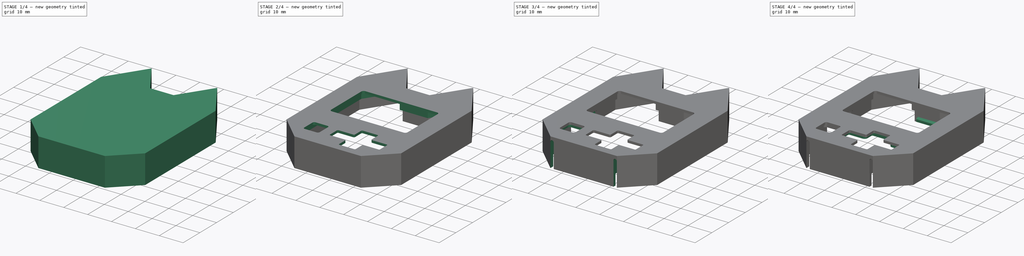
[diagram: build sequence overview — one tinted view per stage of 4, left to right]
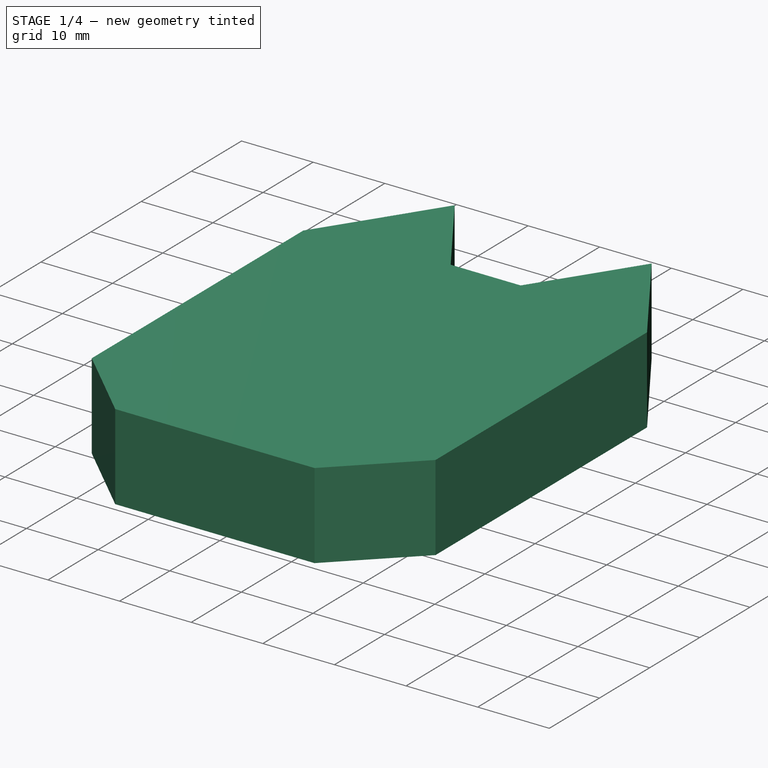
[diagram: stage 1 of 4 — iso view after this stage's code; geometry added in this stage tinted green]
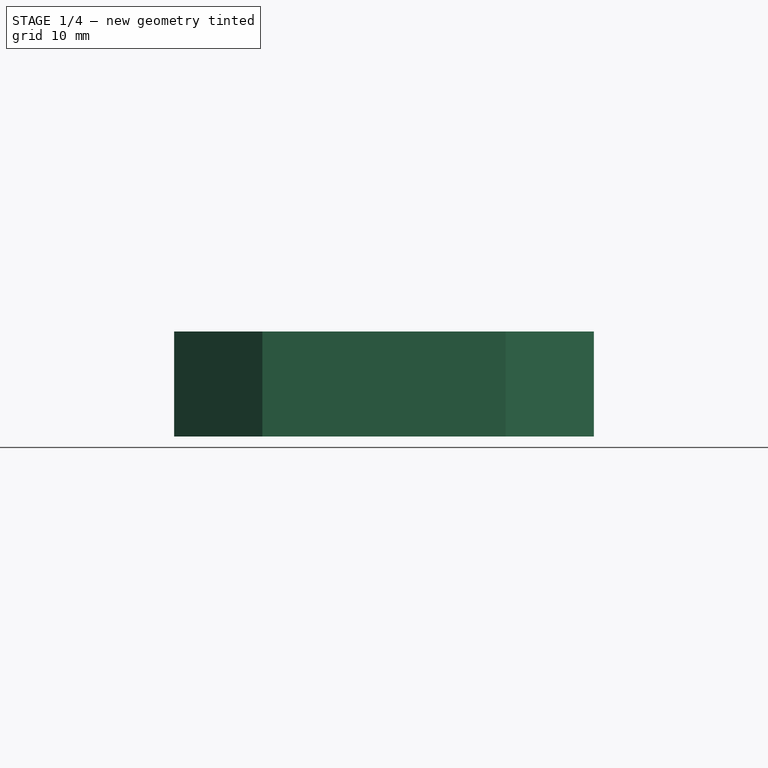
[diagram: stage 1 of 4 — front view after this stage's code; geometry added in this stage tinted green]
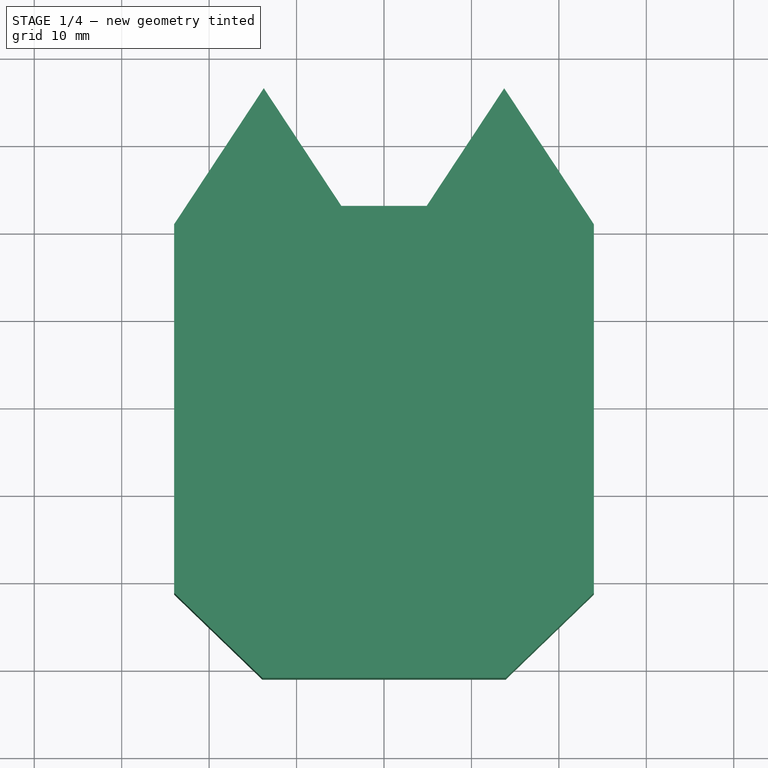
[diagram: stage 1 of 4 — top view after this stage's code; geometry added in this stage tinted green]
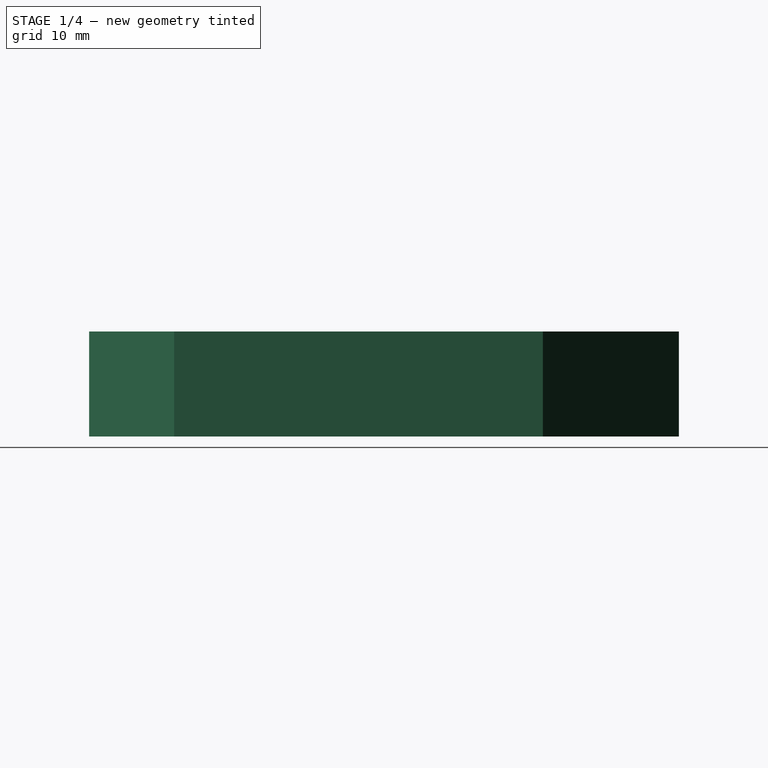
[diagram: stage 1 of 4 — right view after this stage's code; geometry added in this stage tinted green]
FCSTD DOCUMENT  (FreeCAD 0.20R29177 (Git))
Label: FACEPLATE
License: All rights reserved
LicenseURL: http://en.wikipedia.org/wiki/All_rights_reserved
objects: Sketcher::SketchObject×9, PartDesign::Pad×5, PartDesign::Pocket×4, PartDesign::Plane×1, PartDesign::Body×1
note: 29 computed .brp shape members not serialized (recipe doc carries the construction recipe); baked Part::Feature solids carry a one-line shape summary decoded from their .brp

FEATURE [Sketcher::SketchObject] CopySketch
  FullyConstrained = true
  sketch-geometry (22):
    g0: LineSegment StartX=-21 StartY=20 StartZ=0 EndX=-13.75 EndY=31 EndZ=0
    g1: LineSegment StartX=-13.75 StartY=31 StartZ=0 EndX=-6.5 EndY=20 EndZ=0
    g2: LineSegment StartX=-6.5 StartY=20 StartZ=0 EndX=6.5 EndY=20 EndZ=0
    g3: LineSegment StartX=6.5 StartY=20 StartZ=0 EndX=13.75 EndY=31 EndZ=0
    g4: LineSegment StartX=13.75 StartY=31 StartZ=0 EndX=21 EndY=20 EndZ=0
    g5: LineSegment StartX=21 StartY=20 StartZ=0 EndX=21 EndY=-20 EndZ=0
    g6: LineSegment StartX=21 StartY=-20 StartZ=0 EndX=12.7 EndY=-28 EndZ=0
    g7: LineSegment StartX=12.7 StartY=-28 StartZ=0 EndX=-12.7 EndY=-28 EndZ=0
    g8: LineSegment StartX=-12.7 StartY=-28 StartZ=0 EndX=-21 EndY=-20 EndZ=0
    g9: LineSegment StartX=-21 StartY=-20 StartZ=0 EndX=-21 EndY=20 EndZ=0
    g10: LineSegment StartX=-24 StartY=20.8997 StartZ=0 EndX=-13.75 EndY=36.4514 EndZ=0
    g11: LineSegment StartX=-13.75 StartY=36.4514 StartZ=0 EndX=-4.88428 EndY=23 EndZ=0
    g12: LineSegment StartX=-4.88428 StartY=23 StartZ=0 EndX=4.88428 EndY=23 EndZ=0
    g13: LineSegment StartX=4.88428 StartY=23 StartZ=0 EndX=13.75 EndY=36.4514 EndZ=0
    g14: LineSegment StartX=13.75 StartY=36.4514 StartZ=0 EndX=24 EndY=20.8997 EndZ=0
    g15: LineSegment StartX=24 StartY=20.8997 StartZ=0 EndX=24 EndY=-21.2751 EndZ=0
    g16: LineSegment StartX=24 StartY=-21.2751 StartZ=0 EndX=13.9104 EndY=-31 EndZ=0
    g17: LineSegment StartX=13.9104 StartY=-31 StartZ=0 EndX=-13.9104 EndY=-31 EndZ=0
    g18: LineSegment StartX=-13.9104 StartY=-31 StartZ=0 EndX=-24 EndY=-21.2751 EndZ=0
    g19: LineSegment StartX=-24 StartY=-21.2751 StartZ=0 EndX=-24 EndY=20.8997 EndZ=0
    g20: LineSegment StartX=-14.7819 StartY=-30.16 StartZ=0 EndX=-12.7 EndY=-28 EndZ=0
    g21: LineSegment StartX=-13.75 StartY=31 StartZ=0 EndX=-11.2451 EndY=32.6509 EndZ=0
  constraints (60):
    c: Coincident(g0,g1)
    c: Coincident(g1,g2)
    c: Coincident(g2,g3)
    c: Coincident(g3,g4)
    c: Coincident(g4,g5)
    c: Vertical(g5)
    c: Coincident(g5,g6)
    c: Coincident(g6,g7)
    c: Coincident(g7,g8)
    c: Coincident(g8,g9)
    c: Coincident(g9,g0)
    c: DistanceY(g9,g9) = 40
    c: DistanceY(g7,g0) = 59
    c: DistanceY(g6,g5) = 8
    c: DistanceX(g2,g2) = 13
    c: DistanceX(g6,g5) = 8.3
    c: Equal(g5,g9)
    c: Equal(g0,g1)
    c: Equal(g1,g3)
    c: Equal(g3,g4)
    c: Symmetric(g2,g1,g-2)
    c: Symmetric(g7,g6,g-2)
    c: Symmetric(g0,g4,g-2)
    c: Horizontal(g2,g4)
    c: DistanceX(g8,g5) = 42
    c: Symmetric(g0,g8,g-1)
    c: Coincident(g10,g11)
    c: Coincident(g11,g12)
    c: Coincident(g12,g13)
    c: Coincident(g13,g14)
    c: Coincident(g14,g15)
    c: Coincident(g15,g16)
    c: Coincident(g16,g17)
    c: Coincident(g17,g18)
    c: Coincident(g18,g19)
    c: Coincident(g19,g10)
    c: Parallel(g10,g0)
    c: Vertical(g19)
    c: Parallel(g4,g14)
    c: Vertical(g15)
    c: Parallel(g18,g8)
    c: Parallel(g6,g16)
    c: Symmetric(g11,g12,g-2)
    c: Symmetric(g17,g16,g-2)
    c: Equal(g19,g15)
    c: Equal(g16,g18)
    c: DistanceX(g18,g8) = 3
    c: DistanceY(g17,g7) = 3
    c: Perpendicular(g18,g20)
    c: PointOnObject(g20,g18)
    c: Distance(g20) = 3
    c: Coincident(g20,g7)
    c: PointOnObject(g21,g11)
    c: Perpendicular(g1,g21)
    c: Distance(g21) = 3
    c: Horizontal(g13,g10)
    c: Vertical(g10,g0)
    c: DistanceY(g1,g11) = 3
    c: Parallel(g1,g11)
    c: Coincident(g21,g0)
FEATURE [PartDesign::Pad] Pad
  AllowMultiFace = false
  Direction = (1,1,1)
  Length = 12
  Length2 = 100
  Profile = -> CopySketch
  Type = 0
FEATURE [Sketcher::SketchObject] CopySketch002
  FullyConstrained = true
  sketch-geometry (22):
    g0: LineSegment StartX=-21 StartY=20 StartZ=0 EndX=-13.75 EndY=31 EndZ=0
    g1: LineSegment StartX=-13.75 StartY=31 StartZ=0 EndX=-6.5 EndY=20 EndZ=0
    g2: LineSegment StartX=-6.5 StartY=20 StartZ=0 EndX=6.5 EndY=20 EndZ=0
    g3: LineSegment StartX=6.5 StartY=20 StartZ=0 EndX=13.75 EndY=31 EndZ=0
    g4: LineSegment StartX=13.75 StartY=31 StartZ=0 EndX=21 EndY=20 EndZ=0
    g5: LineSegment StartX=21 StartY=20 StartZ=0 EndX=21 EndY=-20 EndZ=0
    g6: LineSegment StartX=21 StartY=-20 StartZ=0 EndX=12.7 EndY=-28 EndZ=0
    g7: LineSegment StartX=12.7 StartY=-28 StartZ=0 EndX=-12.7 EndY=-28 EndZ=0
    g8: LineSegment StartX=-12.7 StartY=-28 StartZ=0 EndX=-21 EndY=-20 EndZ=0
    g9: LineSegment StartX=-21 StartY=-20 StartZ=0 EndX=-21 EndY=20 EndZ=0
    g10: LineSegment StartX=-22.8 StartY=20.5398 StartZ=0 EndX=-13.75 EndY=34.2709 EndZ=0
    g11: LineSegment StartX=-13.75 StartY=34.2709 StartZ=0 EndX=-5.33284 EndY=21.5 EndZ=0
    g12: LineSegment StartX=-5.33284 StartY=21.5 StartZ=0 EndX=5.33284 EndY=21.5 EndZ=0
    g13: LineSegment StartX=5.33284 StartY=21.5 StartZ=0 EndX=13.75 EndY=34.2709 EndZ=0
    g14: LineSegment StartX=13.75 StartY=34.2709 StartZ=0 EndX=22.8 EndY=20.5398 EndZ=0
    g15: LineSegment StartX=22.8 StartY=20.5398 StartZ=0 EndX=22.8 EndY=-20.7651 EndZ=0
    g16: LineSegment StartX=22.8 StartY=-20.7651 StartZ=0 EndX=13.4263 EndY=-29.8 EndZ=0
    g17: LineSegment StartX=13.4263 StartY=-29.8 StartZ=0 EndX=-13.4263 EndY=-29.8 EndZ=0
    g18: LineSegment StartX=-13.4263 StartY=-29.8 StartZ=0 EndX=-22.8 EndY=-20.7651 EndZ=0
    g19: LineSegment StartX=-22.8 StartY=-20.7651 StartZ=0 EndX=-22.8 EndY=20.5398 EndZ=0
    g20: LineSegment StartX=-13.9492 StartY=-29.296 StartZ=0 EndX=-12.7 EndY=-28 EndZ=0
    g21: LineSegment StartX=-13.75 StartY=31 StartZ=0 EndX=-12.2471 EndY=31.9906 EndZ=0
  constraints (60):
    c: Coincident(g0,g1)
    c: Coincident(g1,g2)
    c: Coincident(g2,g3)
    c: Coincident(g3,g4)
    c: Coincident(g4,g5)
    c: Vertical(g5)
    c: Coincident(g5,g6)
    c: Coincident(g6,g7)
    c: Coincident(g7,g8)
    c: Coincident(g8,g9)
    c: Coincident(g9,g0)
    c: DistanceY(g9,g9) = 40
    c: DistanceY(g7,g0) = 59
    c: DistanceY(g6,g5) = 8
    c: DistanceX(g2,g2) = 13
    c: DistanceX(g6,g5) = 8.3
    c: Equal(g5,g9)
    c: Equal(g0,g1)
    c: Equal(g1,g3)
    c: Equal(g3,g4)
    c: Symmetric(g2,g1,g-2)
    c: Symmetric(g7,g6,g-2)
    c: Symmetric(g0,g4,g-2)
    c: Horizontal(g2,g4)
    c: DistanceX(g8,g5) = 42
    c: Symmetric(g0,g8,g-1)
    c: Coincident(g10,g11)
    c: Coincident(g11,g12)
    c: Coincident(g12,g13)
    c: Coincident(g13,g14)
    c: Coincident(g14,g15)
    c: Coincident(g15,g16)
    c: Coincident(g16,g17)
    c: Coincident(g17,g18)
    c: Coincident(g18,g19)
    c: Coincident(g19,g10)
    c: Parallel(g10,g0)
    c: Vertical(g19)
    c: Parallel(g4,g14)
    c: Vertical(g15)
    c: Parallel(g18,g8)
    c: Parallel(g6,g16)
    c: Symmetric(g11,g12,g-2)
    c: Symmetric(g17,g16,g-2)
    c: Equal(g19,g15)
    c: Equal(g16,g18)
    c: DistanceX(g18,g8) = 1.8
    c: DistanceY(g17,g7) = 1.8
    c: Perpendicular(g18,g20)
    c: PointOnObject(g20,g18)
    c: Distance(g20) = 1.8
    c: Coincident(g20,g7)
    c: PointOnObject(g21,g11)
    c: Perpendicular(g1,g21)
    c: Distance(g21) = 1.8
    c: Horizontal(g13,g10)
    c: Vertical(g10,g0)
    c: DistanceY(g1,g11) = 1.5
    c: Parallel(g1,g11)
    c: Coincident(g21,g0)
FEATURE [PartDesign::Pocket] Pocket
  AllowMultiFace = false
  BaseFeature = -> Pad
  Direction = (1,1,1)
  Length = 11
  Length2 = 100
  Profile = -> CopySketch002
  Reversed = true
  Type = 0
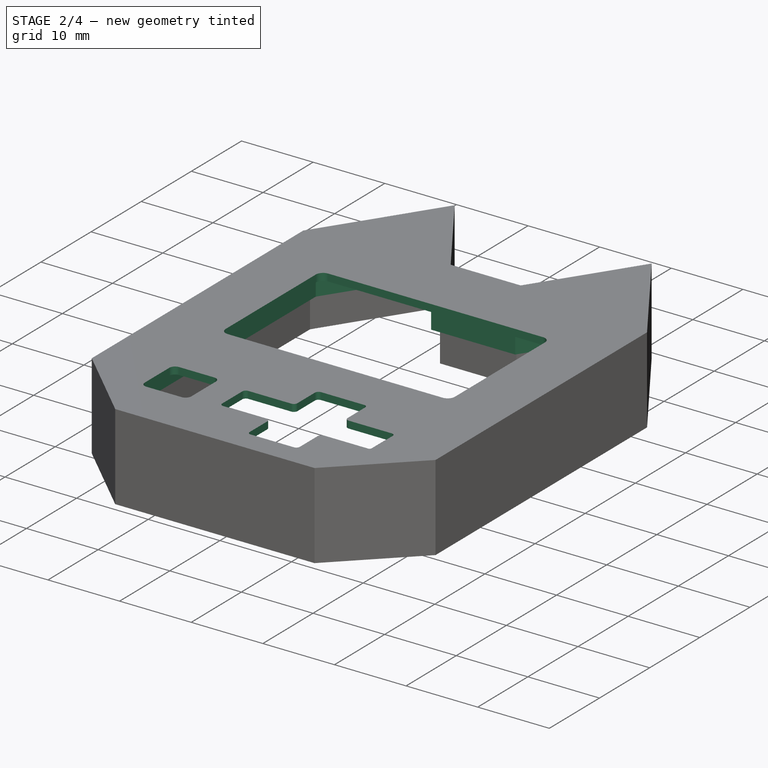
[diagram: stage 2 of 4 — iso view after this stage's code; geometry added in this stage tinted green]
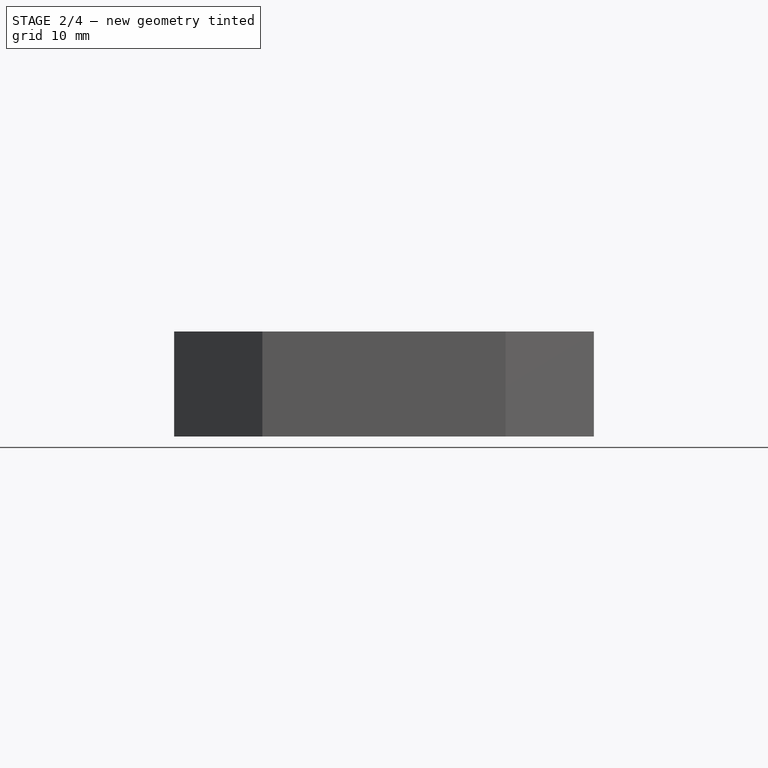
[diagram: stage 2 of 4 — front view after this stage's code; geometry added in this stage tinted green]
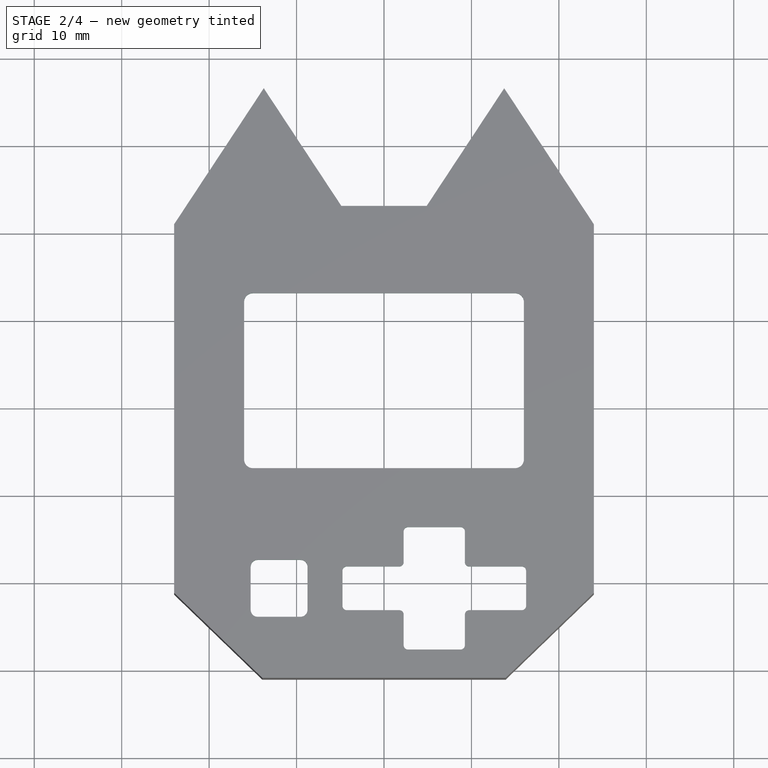
[diagram: stage 2 of 4 — top view after this stage's code; geometry added in this stage tinted green]
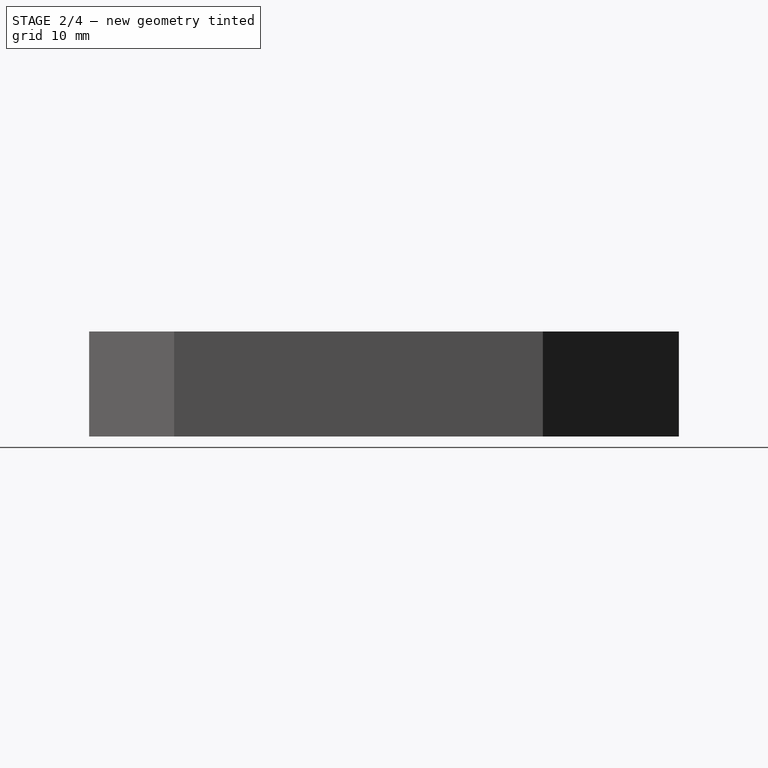
[diagram: stage 2 of 4 — right view after this stage's code; geometry added in this stage tinted green]
FEATURE [Sketcher::SketchObject] Sketch003
  ExternalGeometry = -> [Pocket]
  FullyConstrained = true
  MapMode = 5
  Placement = pos=(0,0,12) rot=(0,0,1;0rad)
  Support = -> [Pocket]
  sketch-geometry (41):
    g0: LineSegment StartX=-15 StartY=13 StartZ=0 EndX=15 EndY=13 EndZ=0
    g1: LineSegment StartX=16 StartY=12 StartZ=0 EndX=16 EndY=-6 EndZ=0
    g2: LineSegment StartX=15 StartY=-7 StartZ=0 EndX=-15 EndY=-7 EndZ=0
    g3: LineSegment StartX=-16 StartY=-6 StartZ=0 EndX=-16 EndY=12 EndZ=0
    g4: LineSegment StartX=2.75 StartY=-13.75 StartZ=0 EndX=8.75 EndY=-13.75 EndZ=0
    g5: LineSegment StartX=9.25 StartY=-14.25 StartZ=0 EndX=9.25 EndY=-17.75 EndZ=0
    g6: LineSegment StartX=9.75 StartY=-18.25 StartZ=0 EndX=15.75 EndY=-18.25 EndZ=0
    g7: LineSegment StartX=16.25 StartY=-18.75 StartZ=0 EndX=16.25 EndY=-22.75 EndZ=0
    g8: LineSegment StartX=15.75 StartY=-23.25 StartZ=0 EndX=9.75 EndY=-23.25 EndZ=0
    g9: LineSegment StartX=9.25 StartY=-23.75 StartZ=0 EndX=9.25 EndY=-27.25 EndZ=0
    g10: LineSegment StartX=8.75 StartY=-27.75 StartZ=0 EndX=2.75 EndY=-27.75 EndZ=0
    g11: LineSegment StartX=2.25 StartY=-27.25 StartZ=0 EndX=2.25 EndY=-23.75 EndZ=0
    g12: LineSegment StartX=1.75 StartY=-23.25 StartZ=0 EndX=-4.25 EndY=-23.25 EndZ=0
    g13: LineSegment StartX=-4.75 StartY=-22.75 StartZ=0 EndX=-4.75 EndY=-18.75 EndZ=0
    g14: LineSegment StartX=-4.25 StartY=-18.25 StartZ=0 EndX=1.75 EndY=-18.25 EndZ=0
    g15: LineSegment StartX=2.25 StartY=-17.75 StartZ=0 EndX=2.25 EndY=-14.25 EndZ=0
    g16: LineSegment StartX=-14.45 StartY=-17.5 StartZ=0 EndX=-9.55 EndY=-17.5 EndZ=0
    g17: LineSegment StartX=-8.75 StartY=-18.3 StartZ=0 EndX=-8.75 EndY=-23.2 EndZ=0
    g18: LineSegment StartX=-9.55 StartY=-24 StartZ=0 EndX=-14.45 EndY=-24 EndZ=0
    g19: LineSegment StartX=-15.25 StartY=-23.2 StartZ=0 EndX=-15.25 EndY=-18.3 EndZ=0
    g20: LineSegment StartX=-4.75 StartY=-20.75 StartZ=0 EndX=-8.75 EndY=-20.75 EndZ=0
    g21: ArcOfCircle CenterX=2.75 CenterY=-14.25 CenterZ=0 NormalX=0 NormalY=0 NormalZ=1 AngleXU=0 Radius=0.5 StartAngle=1.5708 EndAngle=3.14159
    g22: ArcOfCircle CenterX=8.75 CenterY=-14.25 CenterZ=0 NormalX=0 NormalY=0 NormalZ=1 AngleXU=0 Radius=0.5 StartAngle=0 EndAngle=1.5708
    g23: ArcOfCircle CenterX=15.75 CenterY=-18.75 CenterZ=0 NormalX=0 NormalY=0 NormalZ=1 AngleXU=0 Radius=0.5 StartAngle=-3.6e-15 EndAngle=1.5708
    g24: ArcOfCircle CenterX=15.75 CenterY=-22.75 CenterZ=0 NormalX=0 NormalY=0 NormalZ=1 AngleXU=0 Radius=0.5 StartAngle=4.71239 EndAngle=6.28319
    g25: ArcOfCircle CenterX=8.75 CenterY=-27.25 CenterZ=0 NormalX=0 NormalY=0 NormalZ=1 AngleXU=0 Radius=0.5 StartAngle=4.71239 EndAngle=6.28319
    g26: ArcOfCircle CenterX=2.75 CenterY=-27.25 CenterZ=0 NormalX=0 NormalY=0 NormalZ=1 AngleXU=0 Radius=0.5 StartAngle=3.14159 EndAngle=4.71239
    g27: ArcOfCircle CenterX=-4.25 CenterY=-18.75 CenterZ=0 NormalX=0 NormalY=0 NormalZ=1 AngleXU=0 Radius=0.5 StartAngle=1.5708 EndAngle=3.14159
    g28: ArcOfCircle CenterX=-4.25 CenterY=-22.75 CenterZ=0 NormalX=0 NormalY=0 NormalZ=1 AngleXU=0 Radius=0.5 StartAngle=3.14159 EndAngle=4.71239
    g29: ArcOfCircle CenterX=1.75 CenterY=-17.75 CenterZ=0 NormalX=0 NormalY=0 NormalZ=1 AngleXU=0 Radius=0.5 StartAngle=4.71239 EndAngle=6.28319
    g30: ArcOfCircle CenterX=1.75 CenterY=-23.75 CenterZ=0 NormalX=0 NormalY=0 NormalZ=1 AngleXU=0 Radius=0.5 StartAngle=0 EndAngle=1.5708
    g31: ArcOfCircle CenterX=9.75 CenterY=-17.75 CenterZ=0 NormalX=0 NormalY=0 NormalZ=1 AngleXU=0 Radius=0.5 StartAngle=3.14159 EndAngle=4.71239
    g32: ArcOfCircle CenterX=9.75 CenterY=-23.75 CenterZ=0 NormalX=0 NormalY=0 NormalZ=1 AngleXU=0 Radius=0.5 StartAngle=1.5708 EndAngle=3.14159
    g33: ArcOfCircle CenterX=-9.55 CenterY=-18.3 CenterZ=0 NormalX=0 NormalY=0 NormalZ=1 AngleXU=0 Radius=0.8 StartAngle=0 EndAngle=1.5708
    g34: ArcOfCircle CenterX=-14.45 CenterY=-23.2 CenterZ=0 NormalX=0 NormalY=0 NormalZ=1 AngleXU=0 Radius=0.8 StartAngle=3.14159 EndAngle=4.71239
    g35: ArcOfCircle CenterX=-9.55 CenterY=-23.2 CenterZ=0 NormalX=0 NormalY=0 NormalZ=1 AngleXU=0 Radius=0.8 StartAngle=4.71239 EndAngle=6.28319
    g36: ArcOfCircle CenterX=-14.45 CenterY=-18.3 CenterZ=0 NormalX=0 NormalY=0 NormalZ=1 AngleXU=0 Radius=0.8 StartAngle=1.5708 EndAngle=3.14159
    g37: ArcOfCircle CenterX=-15 CenterY=12 CenterZ=0 NormalX=0 NormalY=0 NormalZ=1 AngleXU=0 Radius=1 StartAngle=1.5708 EndAngle=3.14159
    g38: ArcOfCircle CenterX=15 CenterY=12 CenterZ=0 NormalX=0 NormalY=0 NormalZ=1 AngleXU=0 Radius=1 StartAngle=2e-16 EndAngle=1.5708
    g39: ArcOfCircle CenterX=15 CenterY=-6 CenterZ=0 NormalX=0 NormalY=0 NormalZ=1 AngleXU=0 Radius=1 StartAngle=4.71239 EndAngle=6.28319
    g40: ArcOfCircle CenterX=-15 CenterY=-6 CenterZ=0 NormalX=0 NormalY=0 NormalZ=1 AngleXU=0 Radius=1 StartAngle=3.14159 EndAngle=4.71239
  constraints (101):
    c: Equal(g3,g1)
    c: Vertical(g3)
    c: Horizontal(g4)
    c: Vertical(g11)
    c: Horizontal(g10)
    c: Horizontal(g8)
    c: Horizontal(g6)
    c: Horizontal(g14)
    c: Vertical(g5)
    c: Vertical(g15)
    c: Horizontal(g12)
    c: Vertical(g9)
    c: Vertical(g7)
    c: Equal(g6,g14)
    c: Equal(g14,g4)
    c: Equal(g9,g5)
    c: Vertical(g17)
    c: Vertical(g19)
    c: Horizontal(g18)
    c: Horizontal(g16)
    c: Equal(g17,g19)
    c: Horizontal(g20)
    c: Tangent(g15,g21) = 1.5708
    c: Tangent(g4,g21) = 1.5708
    c: Tangent(g4,g22) = 1.5708
    c: Tangent(g5,g22) = 1.5708
    c: Tangent(g6,g23) = 1.5708
    c: Tangent(g7,g23) = 1.5708
    c: Tangent(g7,g24) = 1.5708
    c: Tangent(g8,g24) = 1.5708
    c: Tangent(g9,g25) = 1.5708
    c: Tangent(g10,g25) = 1.5708
    c: Tangent(g11,g26) = 1.5708
    c: Tangent(g10,g26) = 1.5708
    c: Tangent(g13,g27) = 1.5708
    c: Tangent(g14,g27) = 1.5708
    c: Tangent(g13,g28) = 1.5708
    c: Tangent(g12,g28) = 1.5708
    c: Tangent(g14,g29) = -1.5708
    c: Tangent(g15,g29) = -1.5708
    c: Tangent(g12,g30) = -1.5708
    c: Tangent(g11,g30) = -1.5708
    c: Tangent(g5,g31) = -1.5708
    c: Tangent(g6,g31) = -1.5708
    c: Tangent(g9,g32) = -1.5708
    c: Tangent(g8,g32) = -1.5708
    c: Equal(g32,g30)
    c: Equal(g30,g29)
    c: Equal(g29,g31)
    c: Equal(g27,g28)
    c: Equal(g28,g26)
    c: Equal(g26,g25)
    c: Equal(g25,g24)
    c: Equal(g24,g23)
    c: Equal(g23,g22)
    c: Equal(g22,g21)
    c: Radius(g27) = 0.5
    c: Radius(g29) = 0.5
    c: DistanceY(g14,g4) = 4.5
    c: DistanceX(g13,g15) = 7
    c: Horizontal(g31,g29)
    c: Vertical(g32,g31)
    c: Vertical(g29,g30)
    c: Horizontal(g32,g30)
    c: DistanceY(g12,g14) = 5
    c: Symmetric(g13,g13,g20)
    c: DistanceX(g20,g20) = 4
    c: Vertical(g13)
    c: Tangent(g16,g33) = 1.5708
    c: Tangent(g17,g33) = 1.5708
    c: Tangent(g19,g34) = 1.5708
    c: Tangent(g18,g34) = 1.5708
    c: Tangent(g18,g35) = 1.5708
    c: Tangent(g17,g35) = 1.5708
    c: Tangent(g19,g36) = 1.5708
    c: Tangent(g16,g36) = 1.5708
    c: DistanceY(g-3,g18) = 7
    c: DistanceY(g18,g16) = 6.5
    c: DistanceX(g19,g17) = 6.5
    c: Equal(g35,g33)
    c: Equal(g33,g36)
    c: Radius(g34) = 0.8
    c: Tangent(g3,g37) = 1.5708
    c: Tangent(g0,g37) = 1.5708
    c: Tangent(g0,g38) = 1.5708
    c: Tangent(g1,g38) = 1.5708
    c: DistanceY(g0,g-4) = 10
    c: DistanceX(g3,g1) = 32
    c: Tangent(g2,g39) = 1.5708
    c: Tangent(g1,g39) = 1.5708
    c: Tangent(g3,g40) = 1.5708
    c: Tangent(g2,g40) = 1.5708
    c: Equal(g39,g40)
    c: Equal(g40,g37)
    c: Equal(g37,g38)
    c: Radius(g38) = 1
    c: Symmetric(g1,g3,g-2)
    c: Vertical(g1)
    c: DistanceY(g2,g0) = 20
    c: DistanceX(g-5,g19) = 8.75
    c: Symmetric(g17,g17,g20)
FEATURE [PartDesign::Pocket] Pocket001
  AllowMultiFace = false
  BaseFeature = -> Pocket
  Direction = (1,1,1)
  Length = 5
  Length2 = 100
  Profile = -> Sketch003
  Type = 0
FEATURE [Sketcher::SketchObject] Sketch
  ExternalGeometry = -> [Pocket001]
  FullyConstrained = true
  MapMode = 5
  Placement = pos=(0,0,11) rot=(1,0,0;3.14159rad)
  Support = -> [Pocket001]
  sketch-geometry (23):
    g0: LineSegment StartX=-13.4263 StartY=29.8 StartZ=0 EndX=13.4263 EndY=29.8 EndZ=0
    g1: LineSegment StartX=13.4263 StartY=29.8 StartZ=0 EndX=22.8 EndY=20.7651 EndZ=0
    g2: LineSegment StartX=22.8 StartY=20.7651 StartZ=0 EndX=22.8 EndY=-20.5398 EndZ=0
    g3: LineSegment StartX=22.8 StartY=-20.5398 StartZ=0 EndX=13.75 EndY=-34.2709 EndZ=0
    g4: LineSegment StartX=13.75 StartY=-34.2709 StartZ=0 EndX=5.33284 EndY=-21.5 EndZ=0
    g5: LineSegment StartX=5.33284 StartY=-21.5 StartZ=0 EndX=-5.33284 EndY=-21.5 EndZ=0
    g6: LineSegment StartX=-5.33284 StartY=-21.5 StartZ=0 EndX=-13.75 EndY=-34.2709 EndZ=0
    g7: LineSegment StartX=-13.75 StartY=-34.2709 StartZ=0 EndX=-22.8 EndY=-20.5398 EndZ=0
    g8: LineSegment StartX=-22.8 StartY=-20.5398 StartZ=0 EndX=-22.8 EndY=20.7651 EndZ=0
    g9: LineSegment StartX=-22.8 StartY=20.7651 StartZ=0 EndX=-13.4263 EndY=29.8 EndZ=0
    g10: LineSegment StartX=-21.8 StartY=20.34 StartZ=0 EndX=-13.0228 EndY=28.8 EndZ=0
    g11: LineSegment StartX=-13.0228 StartY=28.8 StartZ=0 EndX=13.0228 EndY=28.8 EndZ=0
    g12: LineSegment StartX=13.0228 StartY=28.8 StartZ=0 EndX=21.8 EndY=20.34 EndZ=0
    g13: LineSegment StartX=21.8 StartY=20.34 StartZ=0 EndX=21.8 EndY=-20.2399 EndZ=0
    g14: LineSegment StartX=21.8 StartY=-20.2399 StartZ=0 EndX=13.75 EndY=-32.4537 EndZ=0
    g15: LineSegment StartX=13.75 StartY=-32.4537 StartZ=0 EndX=5.87141 EndY=-20.5 EndZ=0
    g16: LineSegment StartX=5.87141 StartY=-20.5 StartZ=0 EndX=-5.87141 EndY=-20.5 EndZ=0
    g17: LineSegment StartX=-5.87141 StartY=-20.5 StartZ=0 EndX=-13.75 EndY=-32.4537 EndZ=0
    g18: LineSegment StartX=-13.75 StartY=-32.4537 StartZ=0 EndX=-21.8 EndY=-20.2399 EndZ=0
    g19: LineSegment StartX=-21.8 StartY=-20.2399 StartZ=0 EndX=-21.8 EndY=20.34 EndZ=0
    g20: LineSegment StartX=14.4628 StartY=27.412 StartZ=0 EndX=15.1568 EndY=28.132 EndZ=0
    g21: LineSegment StartX=-21.5343 StartY=-22.4602 StartZ=0 EndX=-20.6994 EndY=-21.9098 EndZ=0
    g22: LineSegment StartX=14.8506 StartY=-30.7838 StartZ=0 EndX=15.6856 EndY=-31.3341 EndZ=0
  constraints (63):
    c: Horizontal(g0)
    c: Coincident(g0,g1)
    c: Coincident(g1,g2)
    c: Coincident(g2,g3)
    c: Coincident(g3,g4)
    c: Coincident(g4,g5)
    c: Coincident(g5,g6)
    c: Coincident(g6,g7)
    c: Coincident(g7,g8)
    c: Coincident(g8,g9)
    c: Coincident(g9,g0)
    c: Coincident(g10,g11)
    c: Horizontal(g11)
    c: Coincident(g11,g12)
    c: Coincident(g12,g13)
    c: Coincident(g13,g14)
    c: Coincident(g14,g15)
    c: Coincident(g15,g16)
    c: Coincident(g16,g17)
    c: Coincident(g17,g18)
    c: Coincident(g18,g19)
    c: Coincident(g19,g10)
    c: Coincident(g8,g-3)
    c: Coincident(g-3,g7)
    c: Coincident(g6,g-4)
    c: Coincident(g5,g-4)
    c: Coincident(g4,g-5)
    c: Coincident(g-5,g3)
    c: Coincident(g-6,g2)
    c: Coincident(g-6,g1)
    c: Coincident(g-7,g0)
    c: Parallel(g19,g8)
    c: Parallel(g7,g18)
    c: Parallel(g1,g12)
    c: Parallel(g2,g13)
    c: DistanceX(g12,g1) = 1
    c: DistanceY(g10,g-7) = 1
    c: Horizontal(g16)
    c: DistanceY(g5,g16) = 1
    c: Parallel(g14,g3)
    c: Parallel(g15,g4)
    c: PointOnObject(g20,g12)
    c: PointOnObject(g20,g1)
    c: Perpendicular(g20,g12)
    c: Distance(g20) = 1
    c: Parallel(g10,g9)
    c: Equal(g10,g12)
    c: Equal(g9,g1)
    c: DistanceX(g8,g10) = 1
    c: Vertical(g17,g6)
    c: Parallel(g6,g17)
    c: PointOnObject(g21,g7)
    c: PointOnObject(g21,g18)
    c: Perpendicular(g7,g21)
    c: Distance(g21) = 1
    c: PointOnObject(g22,g14)
    c: PointOnObject(g22,g3)
    c: Perpendicular(g14,g22)
    c: Distance(g22) = 1
    c: Equal(g15,g17)
    c: Distance(g21,g18) = 2
    c: Distance(g20,g11) = 2
    c: Distance(g14,g22) = 2
FEATURE [PartDesign::Pad] Pad001
  BaseFeature = -> Pocket001
  Direction = (1,1,1)
  Length = 6.5
  Length2 = 100
  Profile = -> Sketch
  Type = 0
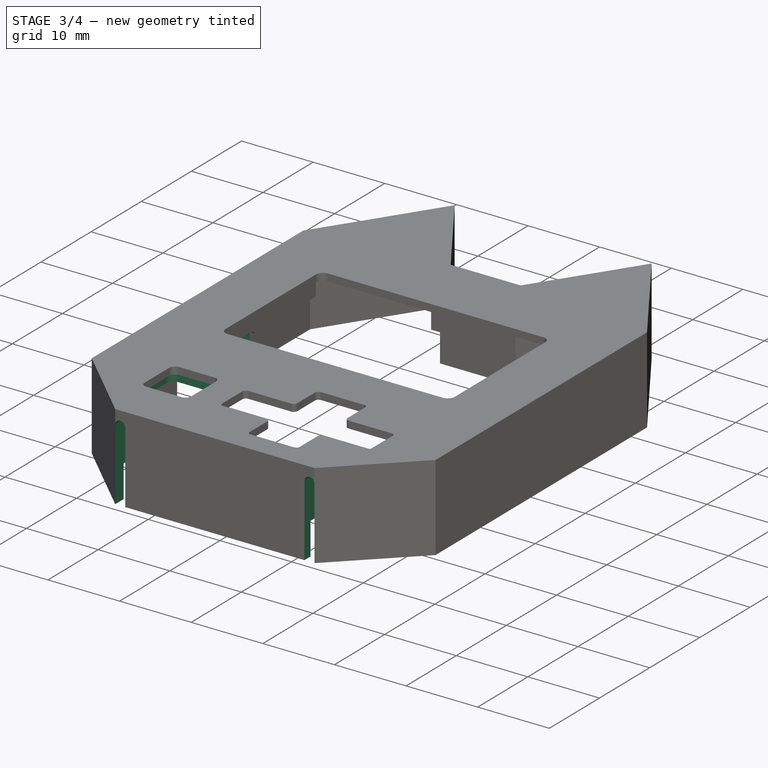
[diagram: stage 3 of 4 — iso view after this stage's code; geometry added in this stage tinted green]
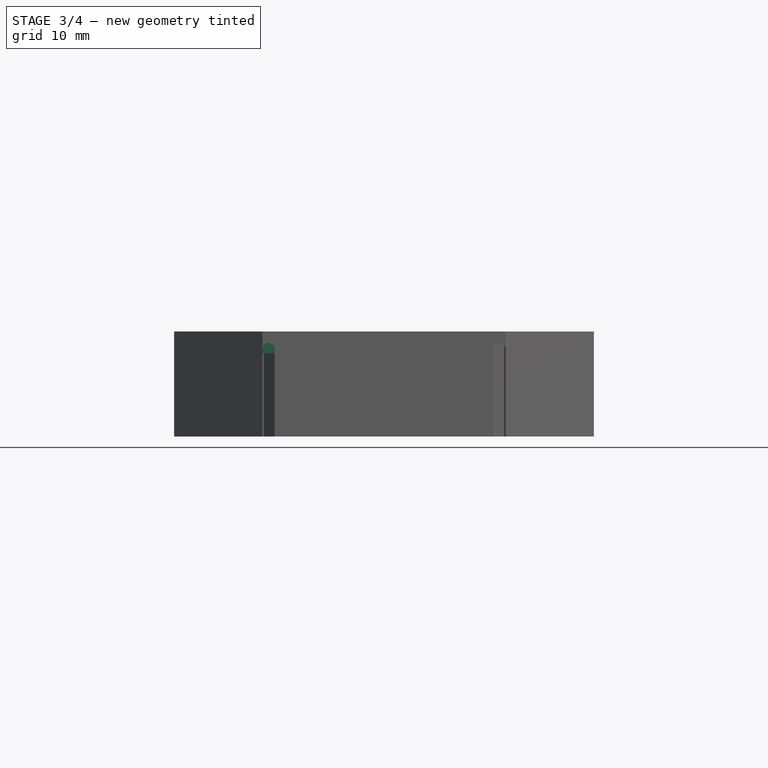
[diagram: stage 3 of 4 — front view after this stage's code; geometry added in this stage tinted green]
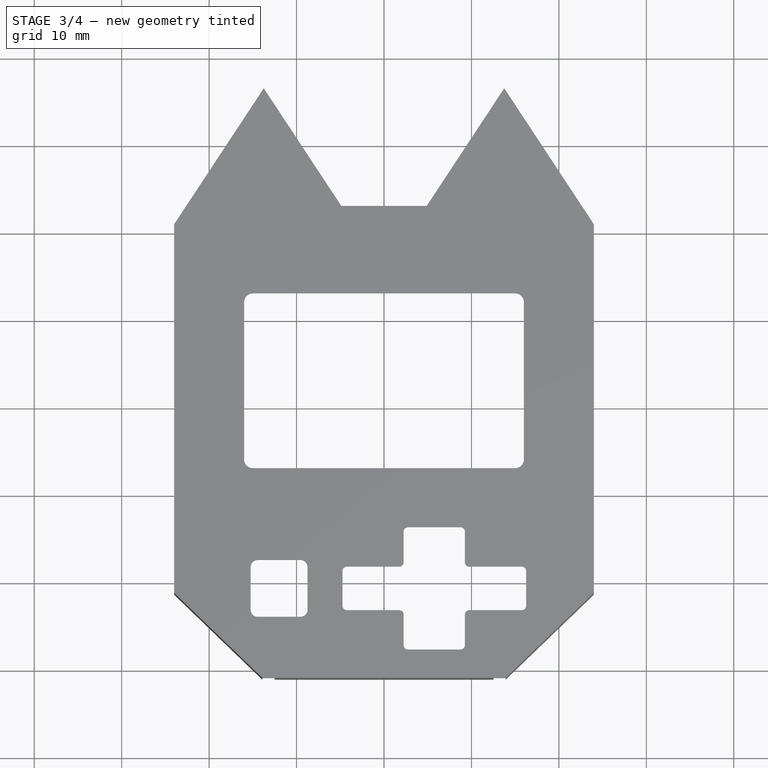
[diagram: stage 3 of 4 — top view after this stage's code; geometry added in this stage tinted green]
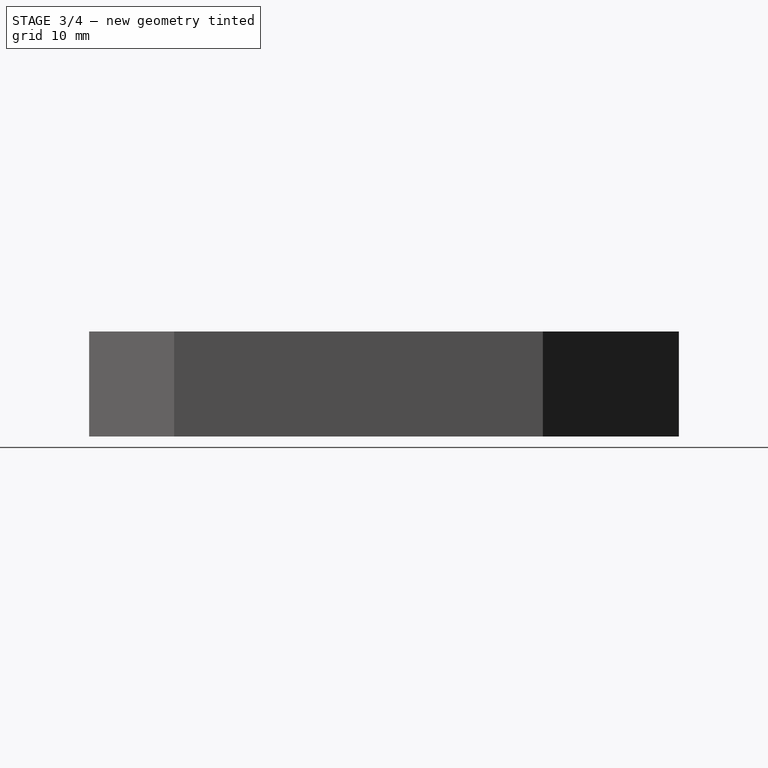
[diagram: stage 3 of 4 — right view after this stage's code; geometry added in this stage tinted green]
FEATURE [Sketcher::SketchObject] Sketch004
  ExternalGeometry = -> [Pad001]
  FullyConstrained = true
  MapMode = 5
  Placement = pos=(-24,0,0) rot=(0.57735,-0.57735,-0.57735;2.0944rad)
  Support = -> [Pad001]
  sketch-geometry (6):
    g0: LineSegment StartX=-8.53983 StartY=0 StartZ=0 EndX=5.96017 EndY=0 EndZ=0
    g1: LineSegment StartX=5.96017 StartY=0 StartZ=0 EndX=5.96017 EndY=3.5 EndZ=0
    g2: LineSegment StartX=4.46017 StartY=5 StartZ=0 EndX=-7.03983 EndY=5 EndZ=0
    g3: LineSegment StartX=-8.53983 StartY=3.5 StartZ=0 EndX=-8.53983 EndY=0 EndZ=0
    g4: ArcOfCircle CenterX=4.46017 CenterY=3.5 CenterZ=0 NormalX=0 NormalY=0 NormalZ=1 AngleXU=0 Radius=1.5 StartAngle=1e-16 EndAngle=1.5708
    g5: ArcOfCircle CenterX=-7.03983 CenterY=3.5 CenterZ=0 NormalX=0 NormalY=0 NormalZ=1 AngleXU=0 Radius=1.5 StartAngle=1.5708 EndAngle=3.14159
  constraints (16):
    c: Coincident(g0,g1)
    c: Coincident(g3,g0)
    c: Horizontal(g0)
    c: Horizontal(g2)
    c: Vertical(g1)
    c: Vertical(g3)
    c: PointOnObject(g0,g-1)
    c: Tangent(g2,g4) = -1.5708
    c: Tangent(g1,g4) = -1.5708
    c: Tangent(g3,g5) = -1.5708
    c: Tangent(g2,g5) = -1.5708
    c: Equal(g5,g4)
    c: Radius(g4) = 1.5
    c: DistanceX(g-3,g0) = 12
    c: DistanceX(g0,g0) = 14.5
    c: DistanceY(g0,g2) = 5
FEATURE [PartDesign::Pocket] Pocket002
  BaseFeature = -> Pad001
  Direction = (1,0,0)
  Length = 5
  Length2 = 100
  Profile = -> Sketch004
  ReferenceAxis = -> Sketch004 [N_Axis]
  Type = 0
FEATURE [Sketcher::SketchObject] Sketch007
  ExternalGeometry = -> [Pocket002]
  FullyConstrained = true
  MapMode = 5
  Placement = pos=(0,0,11) rot=(1,0,0;3.14159rad)
  sketch-geometry (48):
    g0: LineSegment StartX=0.55 StartY=28.45 StartZ=0 EndX=0.55 EndY=25.2 EndZ=0
    g1: LineSegment StartX=-0.7 StartY=23.95 StartZ=0 EndX=-5.45 EndY=23.95 EndZ=0
    g2: LineSegment StartX=-5.95 StartY=23.45 StartZ=0 EndX=-5.95 EndY=17.55 EndZ=0
    g3: LineSegment StartX=-5.45 StartY=17.05 StartZ=0 EndX=-0.2 EndY=17.05 EndZ=0
    g4: LineSegment StartX=1.05 StartY=15.8 StartZ=0 EndX=1.05 EndY=13.55 EndZ=0
    g5: LineSegment StartX=1.55 StartY=13.05 StartZ=0 EndX=10.45 EndY=13.05 EndZ=0
    g6: LineSegment StartX=10.95 StartY=13.55 StartZ=0 EndX=10.95 EndY=15.8 EndZ=0
    g7: LineSegment StartX=12.2 StartY=17.05 StartZ=0 EndX=16.45 EndY=17.05 EndZ=0
    g8: LineSegment StartX=16.95 StartY=17.55 StartZ=0 EndX=16.95 EndY=24.45 EndZ=0
    g9: LineSegment StartX=16.45 StartY=24.95 StartZ=0 EndX=11.7 EndY=24.95 EndZ=0
    g10: LineSegment StartX=10.45 StartY=26.2 StartZ=0 EndX=10.45 EndY=28.45 EndZ=0
    g11: LineSegment StartX=9.95 StartY=28.95 StartZ=0 EndX=1.05 EndY=28.95 EndZ=0
    g12: ArcOfCircle CenterX=1.05 CenterY=28.45 CenterZ=0 NormalX=0 NormalY=0 NormalZ=1 AngleXU=0 Radius=0.5 StartAngle=1.5708 EndAngle=3.14159
    g13: ArcOfCircle CenterX=9.95 CenterY=28.45 CenterZ=0 NormalX=0 NormalY=0 NormalZ=1 AngleXU=0 Radius=0.5 StartAngle=1.7e-15 EndAngle=1.5708
    g14: ArcOfCircle CenterX=16.45 CenterY=24.45 CenterZ=0 NormalX=0 NormalY=0 NormalZ=1 AngleXU=0 Radius=0.5 StartAngle=-1.883e-13 EndAngle=1.5708
    g15: ArcOfCircle CenterX=16.45 CenterY=17.55 CenterZ=0 NormalX=0 NormalY=0 NormalZ=1 AngleXU=0 Radius=0.5 StartAngle=4.71239 EndAngle=6.28319
    g16: ArcOfCircle CenterX=12.2 CenterY=15.8 CenterZ=0 NormalX=0 NormalY=0 NormalZ=1 AngleXU=0 Radius=1.25 StartAngle=1.5708 EndAngle=3.14159
    g17: ArcOfCircle CenterX=11.7 CenterY=26.2 CenterZ=0 NormalX=0 NormalY=0 NormalZ=1 AngleXU=0 Radius=1.25 StartAngle=3.14159 EndAngle=4.71239
    g18: ArcOfCircle CenterX=-0.7 CenterY=25.2 CenterZ=0 NormalX=0 NormalY=0 NormalZ=1 AngleXU=0 Radius=1.25 StartAngle=4.71239 EndAngle=6.28319
    g19: ArcOfCircle CenterX=-5.45 CenterY=23.45 CenterZ=0 NormalX=0 NormalY=0 NormalZ=1 AngleXU=0 Radius=0.5 StartAngle=1.5708 EndAngle=3.14159
    g20: ArcOfCircle CenterX=-5.45 CenterY=17.55 CenterZ=0 NormalX=0 NormalY=0 NormalZ=1 AngleXU=0 Radius=0.5 StartAngle=3.14159 EndAngle=4.71239
    g21: ArcOfCircle CenterX=-0.2 CenterY=15.8 CenterZ=0 NormalX=0 NormalY=0 NormalZ=1 AngleXU=0 Radius=1.25 StartAngle=2e-16 EndAngle=1.5708
    g22: ArcOfCircle CenterX=1.55 CenterY=13.55 CenterZ=0 NormalX=0 NormalY=0 NormalZ=1 AngleXU=0 Radius=0.5 StartAngle=3.14159 EndAngle=4.71239
    g23: ArcOfCircle CenterX=10.45 CenterY=13.55 CenterZ=0 NormalX=0 NormalY=0 NormalZ=1 AngleXU=0 Radius=0.5 StartAngle=4.71239 EndAngle=6.28319
    g24: LineSegment StartX=0.3 StartY=15.8 StartZ=0 EndX=0.3 EndY=13.55 EndZ=0
    g25: LineSegment StartX=1.55 StartY=12.3 StartZ=0 EndX=10.45 EndY=12.3 EndZ=0
    g26: LineSegment StartX=11.7 StartY=13.55 StartZ=0 EndX=11.7 EndY=15.8 EndZ=0
    g27: LineSegment StartX=12.2 StartY=16.3 StartZ=0 EndX=16.45 EndY=16.3 EndZ=0
    g28: LineSegment StartX=17.7 StartY=17.55 StartZ=0 EndX=17.7 EndY=24.45 EndZ=0
    g29: LineSegment StartX=16.45 StartY=25.7 StartZ=0 EndX=11.7 EndY=25.7 EndZ=0
    g30: LineSegment StartX=11.2 StartY=26.2 StartZ=0 EndX=11.2 EndY=28.45 EndZ=0
    g31: LineSegment StartX=9.95 StartY=29.7 StartZ=0 EndX=1.05 EndY=29.7 EndZ=0
    g32: LineSegment StartX=-0.2 StartY=28.45 StartZ=0 EndX=-0.2 EndY=25.2 EndZ=0
    g33: LineSegment StartX=-0.7 StartY=24.7 StartZ=0 EndX=-5.45 EndY=24.7 EndZ=0
    g34: LineSegment StartX=-6.7 StartY=23.45 StartZ=0 EndX=-6.7 EndY=17.55 EndZ=0
    g35: LineSegment StartX=-5.45 StartY=16.3 StartZ=0 EndX=-0.2 EndY=16.3 EndZ=0
    g36: ArcOfCircle CenterX=-0.2 CenterY=15.8 CenterZ=0 NormalX=0 NormalY=0 NormalZ=1 AngleXU=0 Radius=0.5 StartAngle=5e-16 EndAngle=1.5708
    g37: ArcOfCircle CenterX=12.2 CenterY=15.8 CenterZ=0 NormalX=0 NormalY=0 NormalZ=1 AngleXU=0 Radius=0.5 StartAngle=1.5708 EndAngle=3.14159
    g38: ArcOfCircle CenterX=11.7 CenterY=26.2 CenterZ=0 NormalX=0 NormalY=0 NormalZ=1 AngleXU=0 Radius=0.5 StartAngle=3.14159 EndAngle=4.71239
    g39: ArcOfCircle CenterX=-0.7 CenterY=25.2 CenterZ=0 NormalX=0 NormalY=0 NormalZ=1 AngleXU=0 Radius=0.5 StartAngle=4.71239 EndAngle=6.28319
    g40: ArcOfCircle CenterX=1.55 CenterY=13.55 CenterZ=0 NormalX=0 NormalY=0 NormalZ=1 AngleXU=0 Radius=1.25 StartAngle=3.14159 EndAngle=4.71239
    g41: ArcOfCircle CenterX=10.45 CenterY=13.55 CenterZ=0 NormalX=0 NormalY=0 NormalZ=1 AngleXU=0 Radius=1.25 StartAngle=4.71239 EndAngle=6.28319
    g42: ArcOfCircle CenterX=-5.45 CenterY=17.55 CenterZ=0 NormalX=0 NormalY=0 NormalZ=1 AngleXU=0 Radius=1.25 StartAngle=3.14159 EndAngle=4.71239
    g43: ArcOfCircle CenterX=-5.45 CenterY=23.45 CenterZ=0 NormalX=0 NormalY=0 NormalZ=1 AngleXU=0 Radius=1.25 StartAngle=1.5708 EndAngle=3.14159
    g44: ArcOfCircle CenterX=16.45 CenterY=17.55 CenterZ=0 NormalX=0 NormalY=0 NormalZ=1 AngleXU=0 Radius=1.25 StartAngle=4.71239 EndAngle=6.28319
    g45: ArcOfCircle CenterX=16.45 CenterY=24.45 CenterZ=0 NormalX=0 NormalY=0 NormalZ=1 AngleXU=0 Radius=1.25 StartAngle=2.48e-14 EndAngle=1.5708
    g46: ArcOfCircle CenterX=9.95 CenterY=28.45 CenterZ=0 NormalX=0 NormalY=0 NormalZ=1 AngleXU=0 Radius=1.25 StartAngle=0 EndAngle=1.5708
    g47: ArcOfCircle CenterX=1.05 CenterY=28.45 CenterZ=0 NormalX=0 NormalY=0 NormalZ=1 AngleXU=0 Radius=1.25 StartAngle=1.5708 EndAngle=3.14159
  constraints (119):
    c: Vertical(g0)
    c: Horizontal(g1)
    c: Vertical(g2)
    c: Horizontal(g9)
    c: Horizontal(g11)
    c: Vertical(g10)
    c: Horizontal(g3)
    c: Horizontal(g7)
    c: Vertical(g8)
    c: Vertical(g6)
    c: Horizontal(g5)
    c: Vertical(g4)
    c: Tangent(g0,g12) = -1.5708
    c: Tangent(g11,g12) = -1.5708
    c: Tangent(g11,g13) = -1.5708
    c: Tangent(g10,g13) = -1.5708
    c: Tangent(g9,g14) = -1.5708
    c: Tangent(g8,g14) = -1.5708
    c: Tangent(g7,g15) = -1.5708
    c: Tangent(g8,g15) = -1.5708
    c: Tangent(g6,g16) = 1.5708
    c: Tangent(g7,g16) = 1.5708
    c: Tangent(g10,g17) = 1.5708
    c: Tangent(g9,g17) = 1.5708
    c: Tangent(g0,g18) = 1.5708
    c: Tangent(g1,g18) = 1.5708
    c: Tangent(g2,g19) = -1.5708
    c: Tangent(g1,g19) = -1.5708
    c: Tangent(g2,g20) = -1.5708
    c: Tangent(g3,g20) = -1.5708
    c: Tangent(g3,g21) = 1.5708
    c: Tangent(g4,g21) = 1.5708
    c: Tangent(g4,g22) = -1.5708
    c: Tangent(g5,g22) = -1.5708
    c: Tangent(g5,g23) = -1.5708
    c: Tangent(g6,g23) = -1.5708
    c: Equal(g14,g15)
    c: Equal(g15,g23)
    c: Equal(g23,g22)
    c: Equal(g22,g20)
    c: Equal(g20,g19)
    c: Equal(g19,g12)
    c: Equal(g12,g13)
    c: Equal(g21,g16)
    c: Equal(g16,g17)
    c: Equal(g17,g18)
    c: Radius(g22) = 0.5
    c: Vertical(g24)
    c: Horizontal(g25)
    c: Horizontal(g27)
    c: Vertical(g28)
    c: Horizontal(g29)
    c: Horizontal(g31)
    c: Vertical(g34)
    c: Horizontal(g35)
    c: Tangent(g35,g36) = 1.5708
    c: Tangent(g24,g36) = 1.5708
    c: Tangent(g26,g37) = 1.5708
    c: Tangent(g27,g37) = 1.5708
    c: Tangent(g30,g38) = 1.5708
    c: Tangent(g29,g38) = 1.5708
    c: Tangent(g33,g39) = 1.5708
    c: Tangent(g32,g39) = 1.5708
    c: Equal(g39,g36)
    c: Equal(g36,g37)
    c: Equal(g37,g38)
    c: Vertical(g32)
    c: Vertical(g30)
    c: Horizontal(g33)
    c: Vertical(g26)
    c: DistanceY(g35,g3) = 0.75
    c: DistanceX(g24,g4) = 0.75
    c: DistanceY(g27,g7) = 0.75
    c: DistanceX(g6,g26) = 0.75
    c: DistanceY(g9,g29) = 0.75
    c: DistanceX(g10,g30) = 0.75
    c: Radius(g36) = 0.5
    c: Horizontal(g24,g4)
    c: Tangent(g24,g40) = -1.5708
    c: Tangent(g25,g40) = -1.5708
    c: Tangent(g25,g41) = -1.5708
    c: Tangent(g26,g41) = -1.5708
    c: Tangent(g34,g42) = -1.5708
    c: Tangent(g35,g42) = -1.5708
    c: Tangent(g33,g43) = -1.5708
    c: Tangent(g34,g43) = -1.5708
    c: Tangent(g27,g44) = -1.5708
    c: Tangent(g28,g44) = -1.5708
    c: Tangent(g29,g45) = -1.5708
    c: Tangent(g28,g45) = -1.5708
    c: Tangent(g31,g46) = -1.5708
    c: Tangent(g30,g46) = -1.5708
    c: Tangent(g32,g47) = -1.5708
    c: Tangent(g31,g47) = -1.5708
    c: DistanceY(g25,g5) = 0.75
    c: Equal(g44,g45)
    c: Equal(g45,g41)
    c: Equal(g41,g40)
    c: Equal(g40,g42)
    c: Equal(g42,g43)
    c: Equal(g43,g47)
    c: Equal(g47,g46)
    c: Vertical(g29,g9)
    c: Horizontal(g28,g8)
    c: DistanceX(g34,g2) = 0.75
    c: Horizontal(g2,g34)
    c: Coincident(g47,g12)
    c: DistanceY(g-3,g11) = 1.2
    c: DistanceY(g-4,g1) = 1.2
    c: DistanceX(g-13,g10) = 1.2
    c: DistanceY(g-11,g9) = 1.2
    c: DistanceX(g2,g-5) = 1.2
    c: DistanceY(g3,g-6) = 1.2
    c: DistanceX(g4,g-7) = 1.2
    c: DistanceY(g5,g-8) = 1.2
    c: DistanceY(g7,g-10) = 1.2
    c: DistanceX(g-9,g6) = 1.2
    c: DistanceX(g-12,g8) = 1.2
    c: DistanceX(g0,g-14) = 1.2
FEATURE [Sketcher::SketchObject] Sketch008
  FullyConstrained = false
  MapMode = 5
  Placement = pos=(0,0,11) rot=(1,0,0;3.14159rad)
  sketch-geometry (16):
    g0: LineSegment StartX=-15.25 StartY=25 StartZ=0 EndX=-8.75 EndY=25 EndZ=0
    g1: LineSegment StartX=-7.75 StartY=24 StartZ=0 EndX=-7.75 EndY=17.5 EndZ=0
    g2: LineSegment StartX=-8.75 StartY=16.5 StartZ=0 EndX=-15.25 EndY=16.5 EndZ=0
    g3: LineSegment StartX=-16.25 StartY=17.5 StartZ=0 EndX=-16.25 EndY=24 EndZ=0
    g4: LineSegment StartX=-8.75 StartY=15.75 StartZ=0 EndX=-15.25 EndY=15.75 EndZ=0
    g5: LineSegment StartX=-17 StartY=17.5 StartZ=0 EndX=-17 EndY=24 EndZ=0
    g6: LineSegment StartX=-15.25 StartY=25.75 StartZ=0 EndX=-8.75 EndY=25.75 EndZ=0
    g7: LineSegment StartX=-7 StartY=24 StartZ=0 EndX=-7 EndY=17.5 EndZ=0
    g8: ArcOfCircle CenterX=-15.25 CenterY=24 CenterZ=0 NormalX=0 NormalY=0 NormalZ=1 AngleXU=0 Radius=1 StartAngle=1.5708 EndAngle=3.14159
    g9: ArcOfCircle CenterX=-15.25 CenterY=17.5 CenterZ=0 NormalX=0 NormalY=0 NormalZ=1 AngleXU=0 Radius=1 StartAngle=3.14159 EndAngle=4.71239
    g10: ArcOfCircle CenterX=-8.75 CenterY=17.5 CenterZ=0 NormalX=0 NormalY=0 NormalZ=1 AngleXU=0 Radius=1 StartAngle=4.71239 EndAngle=6.28319
    g11: ArcOfCircle CenterX=-8.75 CenterY=24 CenterZ=0 NormalX=0 NormalY=0 NormalZ=1 AngleXU=0 Radius=1 StartAngle=4.0542e-12 EndAngle=1.5708
    g12: ArcOfCircle CenterX=-8.75 CenterY=24 CenterZ=0 NormalX=0 NormalY=0 NormalZ=1 AngleXU=0 Radius=1.75 StartAngle=1e-16 EndAngle=1.5708
    g13: ArcOfCircle CenterX=-8.75 CenterY=17.5 CenterZ=0 NormalX=0 NormalY=0 NormalZ=1 AngleXU=0 Radius=1.75 StartAngle=4.71239 EndAngle=6.28319
    g14: ArcOfCircle CenterX=-15.25 CenterY=17.5 CenterZ=0 NormalX=0 NormalY=0 NormalZ=1 AngleXU=0 Radius=1.75 StartAngle=3.14159 EndAngle=4.71239
    g15: ArcOfCircle CenterX=-15.25 CenterY=24 CenterZ=0 NormalX=0 NormalY=0 NormalZ=1 AngleXU=0 Radius=1.75 StartAngle=1.5708 EndAngle=3.14159
  constraints (37):
    c: Horizontal(g0)
    c: Horizontal(g2)
    c: Vertical(g1)
    c: Vertical(g3)
    c: Horizontal(g4)
    c: Horizontal(g6)
    c: Vertical(g5)
    c: Vertical(g7)
    c: Tangent(g3,g8) = 1.5708
    c: Tangent(g0,g8) = 1.5708
    c: Tangent(g3,g9) = 1.5708
    c: Tangent(g2,g9) = 1.5708
    c: Tangent(g2,g10) = 1.5708
    c: Tangent(g1,g10) = 1.5708
    c: Tangent(g0,g11) = 1.5708
    c: Tangent(g1,g11) = 1.5708
    c: Equal(g11,g8)
    c: Equal(g8,g9)
    c: Equal(g9,g10)
    c: Equal(g1,g0)
    c: Tangent(g6,g12) = 1.5708
    c: Tangent(g7,g12) = 1.5708
    c: Tangent(g7,g13) = 1.5708
    c: Tangent(g4,g13) = 1.5708
    c: Tangent(g5,g14) = 1.5708
    c: Tangent(g4,g14) = 1.5708
    c: Tangent(g5,g15) = 1.5708
    c: Tangent(g6,g15) = 1.5708
    c: Equal(g15,g12)
    c: Equal(g12,g13)
    c: Equal(g13,g14)
    c: DistanceY(g4,g2) = 0.75
    c: DistanceX(g1,g7) = 0.75
    c: Vertical(g4,g2)
    c: DistanceY(g0,g6) = 0.75
    c: DistanceX(g5,g3) = 0.75
    c: Radius(g10) = 1
FEATURE [PartDesign::Pad] Pad003
  BaseFeature = -> Pocket002
  Direction = (0,0,-1)
  Length = 1.5
  Length2 = 100
  Profile = -> Sketch008
  ReferenceAxis = -> Sketch008 [N_Axis]
  Type = 0
FEATURE [PartDesign::Plane] DatumPlane
  Length = 79.0662
  MapMode = 45
  Placement = pos=(0,21.5,0) rot=(0.57735,0.57735,0.57735;2.0944rad)
  ResizeMode = 0
  Support = -> [Pad003]
  Width = 61.6148
FEATURE [Sketcher::SketchObject] Sketch009
  ExternalGeometry = -> [Pad003]
  FullyConstrained = true
  MapMode = 5
  Placement = pos=(0,21.5,0) rot=(0.57735,0.57735,0.57735;2.0944rad)
  Support = -> [DatumPlane]
  sketch-geometry (10):
    g0: LineSegment StartX=1.8e-15 StartY=2 StartZ=0 EndX=1.8e-15 EndY=2e-16 EndZ=0
    g1: LineSegment StartX=1.8e-15 StartY=2e-16 StartZ=0 EndX=-1 EndY=0.5 EndZ=0
    g2: LineSegment StartX=-1 StartY=0.5 StartZ=0 EndX=-1 EndY=1.5 EndZ=0
    g3: LineSegment StartX=-1 StartY=1.5 StartZ=0 EndX=1.8e-15 EndY=2 EndZ=0
    g4: LineSegment StartX=-1 StartY=1 StartZ=0 EndX=1.8e-15 EndY=1 EndZ=0
    g5: LineSegment StartX=-51.3 StartY=0 StartZ=0 EndX=-51.3 EndY=2 EndZ=0
    g6: LineSegment StartX=-51.3 StartY=2 StartZ=0 EndX=-50.3 EndY=1.5 EndZ=0
    g7: LineSegment StartX=-50.3 StartY=1.5 StartZ=0 EndX=-50.3 EndY=0.5 EndZ=0
    g8: LineSegment StartX=-50.3 StartY=0.5 StartZ=0 EndX=-51.3 EndY=0 EndZ=0
    g9: LineSegment StartX=-50.3 StartY=1 StartZ=0 EndX=-51.3 EndY=1 EndZ=0
  constraints (26):
    c: Coincident(g0,g1)
    c: Coincident(g1,g2)
    c: Vertical(g2)
    c: Coincident(g2,g3)
    c: Coincident(g3,g0)
    c: Vertical(g0)
    c: Symmetric(g1,g2,g4)
    c: Symmetric(g0,g0,g4)
    c: DistanceY(g0,g0) = 2
    c: DistanceY(g2,g2) = 1
    c: DistanceX(g4,g4) = 1
    c: Coincident(g0,g-3)
    c: Coincident(g5,g6)
    c: Coincident(g6,g7)
    c: Coincident(g7,g8)
    c: Coincident(g8,g5)
    c: Horizontal(g9)
    c: Symmetric(g6,g7,g9)
    c: Symmetric(g5,g5,g9)
    c: Vertical(g5)
    c: Vertical(g7)
    c: DistanceY(g5,g5) = 2
    c: DistanceY(g7,g7) = 1
    c: DistanceX(g9,g9) = 1
    c: Coincident(g5,g-4)
    c: Horizontal(g4)
FEATURE [Sketcher::SketchObject] Sketch010
  FullyConstrained = false
  MapMode = 5
  Placement = pos=(0,-31,0) rot=(1,0,0;1.5708rad)
  sketch-geometry (8):
    g0: LineSegment StartX=-13.9104 StartY=0 StartZ=0 EndX=-13.9104 EndY=10 EndZ=0
    g1: LineSegment StartX=-12.5104 StartY=3.96902e-11 StartZ=0 EndX=-12.5104 EndY=10 EndZ=0
    g2: LineSegment StartX=12.5104 StartY=-3.96896e-11 StartZ=0 EndX=12.5104 EndY=10 EndZ=0
    g3: LineSegment StartX=13.9104 StartY=0 StartZ=0 EndX=13.9104 EndY=10 EndZ=0
    g4: ArcOfCircle CenterX=-13.2104 CenterY=10 CenterZ=0 NormalX=0 NormalY=0 NormalZ=1 AngleXU=0 Radius=0.7 StartAngle=0 EndAngle=3.14159
    g5: ArcOfCircle CenterX=13.2104 CenterY=10 CenterZ=0 NormalX=0 NormalY=0 NormalZ=1 AngleXU=0 Radius=0.7 StartAngle=0 EndAngle=3.14159
    g6: LineSegment StartX=12.5104 StartY=-3.96896e-11 StartZ=0 EndX=13.9104 EndY=0 EndZ=0
    g7: LineSegment StartX=-13.9104 StartY=0 StartZ=0 EndX=-12.5104 EndY=3.96902e-11 EndZ=0
  constraints (22):
    c: Vertical(g0)
    c: Vertical(g1)
    c: Vertical(g2)
    c: Vertical(g3)
    c: Coincident(g4,g0)
    c: Coincident(g4,g1)
    c: Coincident(g5,g2)
    c: Coincident(g5,g3)
    c: Equal(g1,g0)
    c: Equal(g0,g2)
    c: Equal(g2,g3)
    c: Equal(g4,g5)
    c: Horizontal(g1,g4)
    c: Horizontal(g5,g2)
    c: Horizontal(g4,g0)
    c: Horizontal(g3,g5)
    c: DistanceY(g1,g1) = 10
    c: Radius(g4) = 0.7
    c: Coincident(g6,g2)
    c: Coincident(g6,g3)
    c: Coincident(g7,g0)
    c: Coincident(g7,g1)
FEATURE [PartDesign::Pocket] Pocket003
  BaseFeature = -> Pad003
  Direction = (0,1,-2e-16)
  Length = 5
  Length2 = 100
  Profile = -> Sketch010
  Type = 0
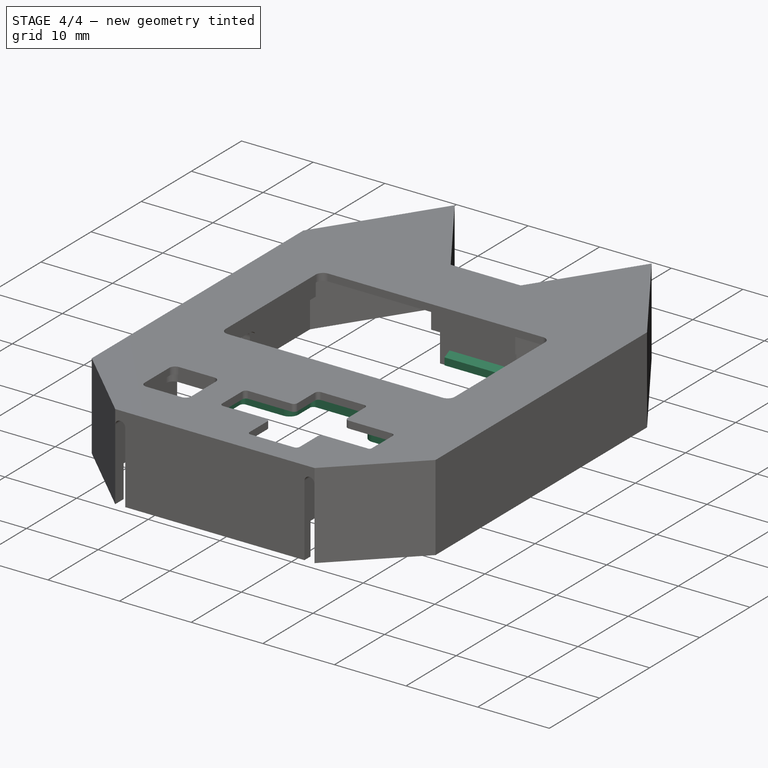
[diagram: stage 4 of 4 — iso view after this stage's code; geometry added in this stage tinted green]
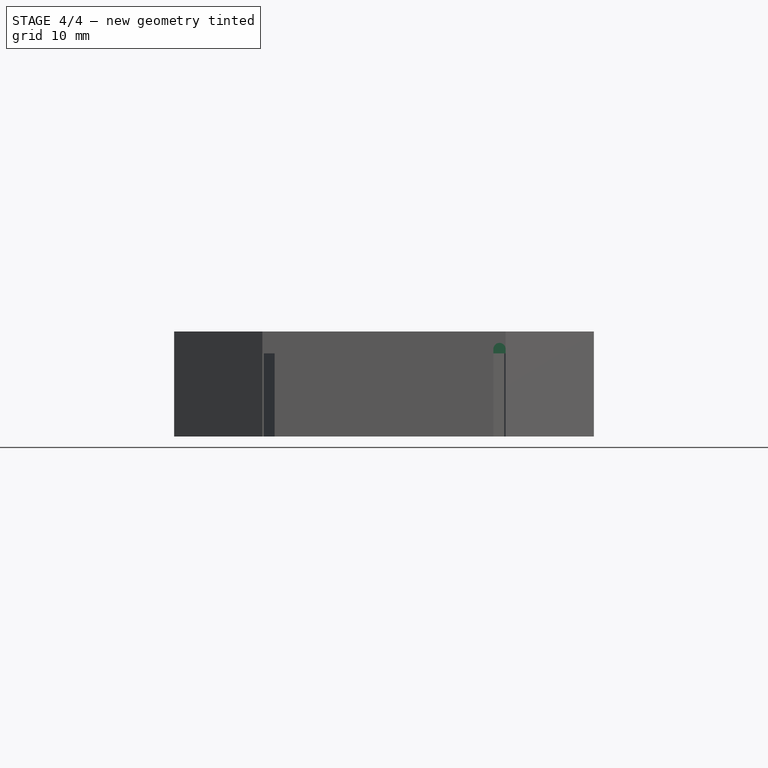
[diagram: stage 4 of 4 — front view after this stage's code; geometry added in this stage tinted green]
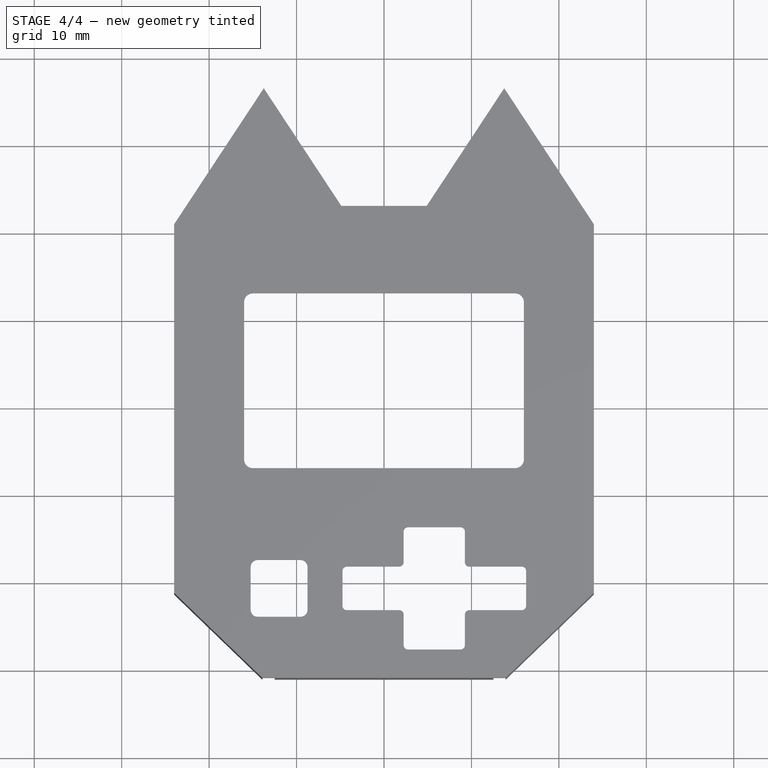
[diagram: stage 4 of 4 — top view after this stage's code; geometry added in this stage tinted green]
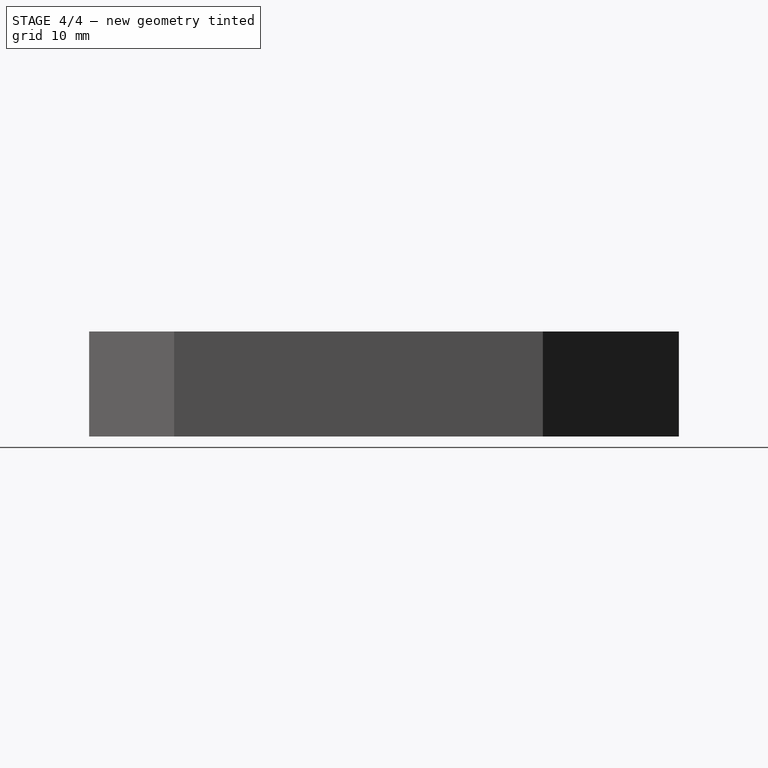
[diagram: stage 4 of 4 — right view after this stage's code; geometry added in this stage tinted green]
FEATURE [PartDesign::Pad] Pad004
  BaseFeature = -> Pocket003
  Direction = (0,0,-1)
  Length = 1.5
  Length2 = 10
  Profile = -> Sketch007
  ReferenceAxis = -> Sketch007 [N_Axis]
  Type = 0
FEATURE [PartDesign::Pad] Pad005
  BaseFeature = -> Pad004
  Direction = (1,1,1)
  Length = 8
  Length2 = 10
  Midplane = true
  Profile = -> Sketch009
  ReferenceAxis = -> Sketch009 [N_Axis]
  Type = 0
FEATURE [PartDesign::Body] Body
  Group = -> [Pad,Pocket,Sketch003,Pocket001,Sketch,Pad001,Sketch004,Pocket002,Sketch007,Sketch008,Pad003,DatumPlane,Sketch009,Sketch010,Pocket003,Pad004,Pad005]
  Origin = -> Origin
  Tip = -> Pad005
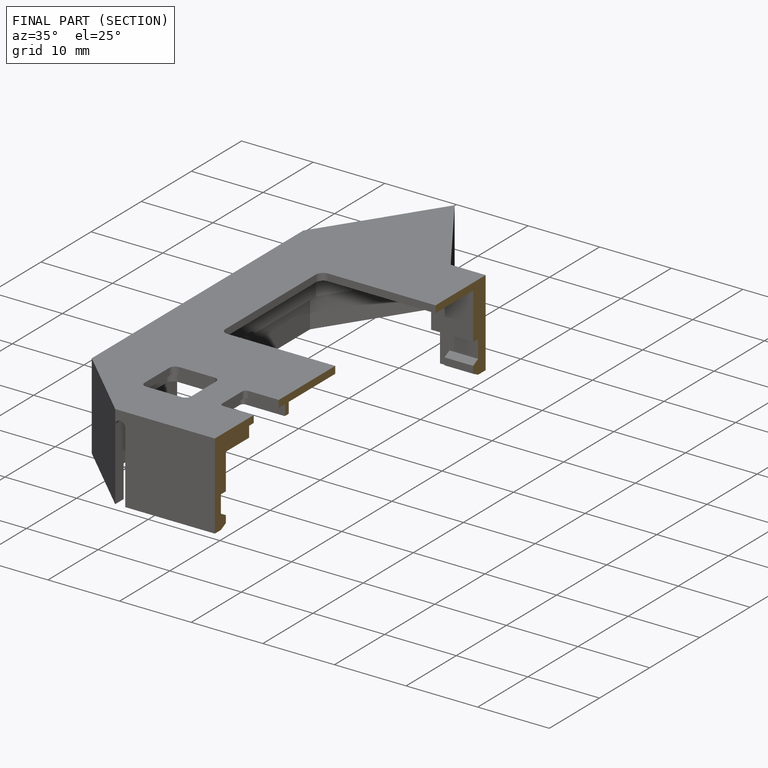
[diagram: finished part — half-section view (interior)]
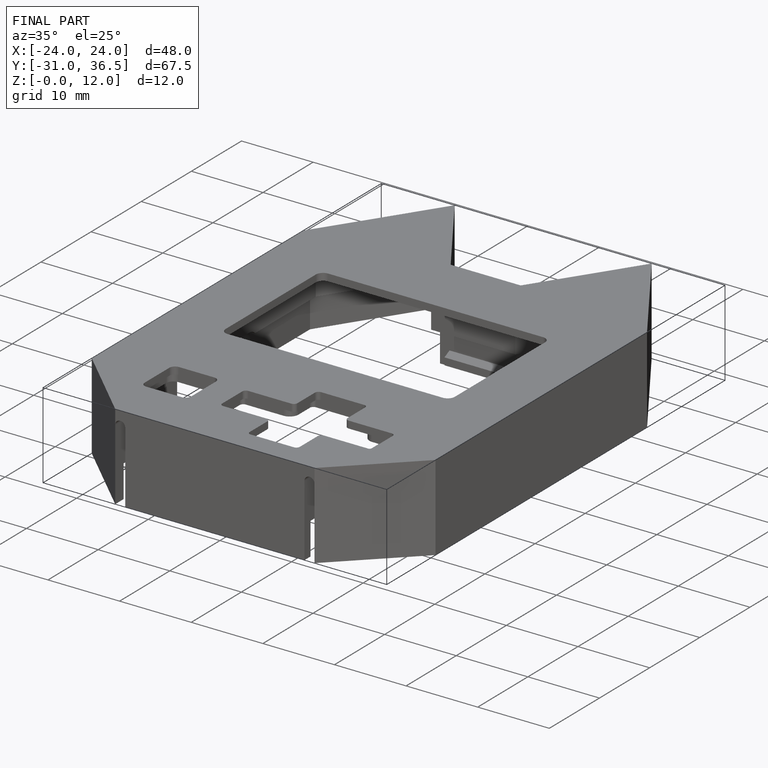
[diagram: finished part — iso view with bounding-box wireframe]
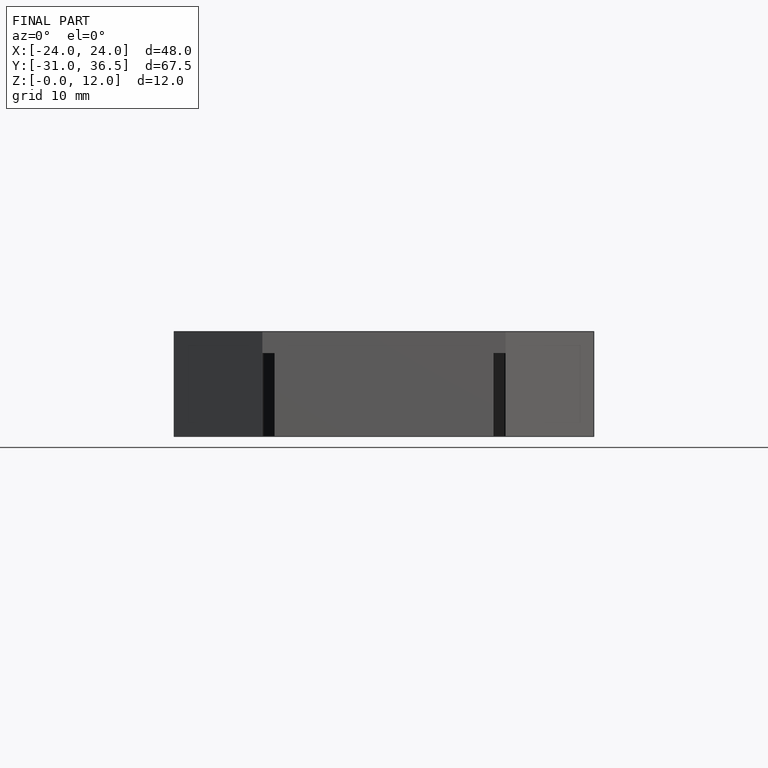
[diagram: finished part — front view with bounding-box wireframe]
